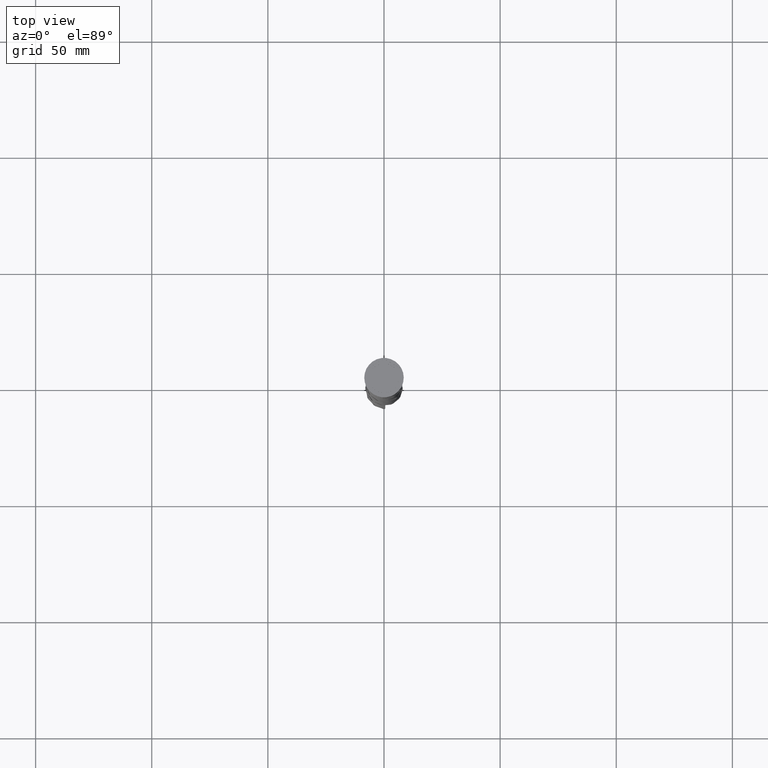
[diagram: clean part render]
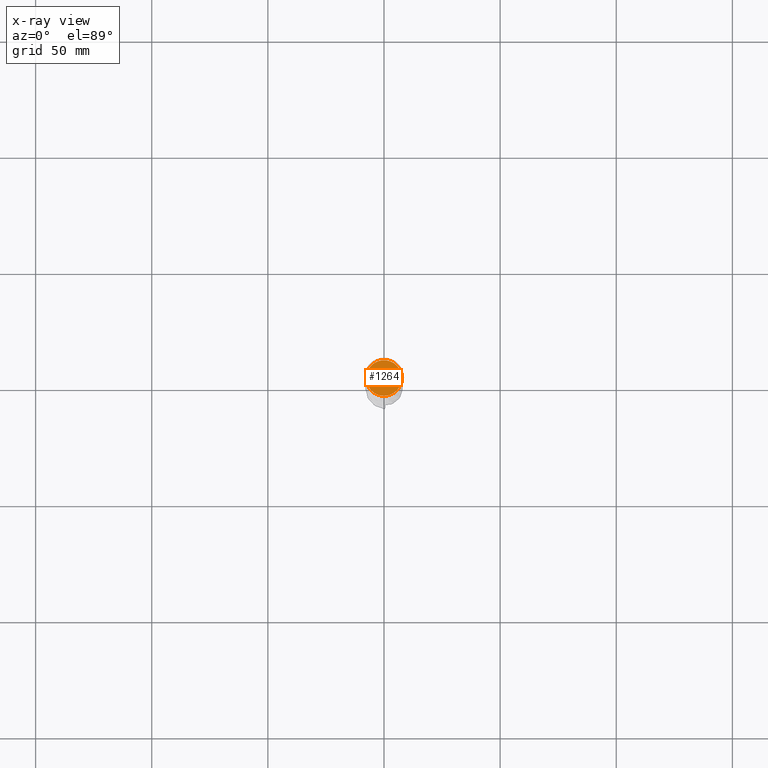
[diagram: x-ray — body ghosted, one internal face saturated and labeled with its STEP entity id]
A machine part, top view, then the same camera in x-ray: the body is ghosted and one INTERNAL B-rep face — a face not visible from any outside direction — is saturated and labeled: STEP entity #1264.
In plain terms, the highlighted planar face has unit normal (0, 0, -1).
Its self-contained STEP definition (entity closure, byte-faithful):
#226 = AXIS2_PLACEMENT_3D ( 'NONE', #3505, #1921, #1621 ) ;
#579 = DIRECTION ( 'NONE',  ( 0.000000000000000000, 0.000000000000000000, -1.000000000000000000 ) ) ;
#645 = ORIENTED_EDGE ( 'NONE', *, *, #3717, .T. ) ;
#675 = EDGE_CURVE ( 'NONE', #2085, #1122, #3945, .T. ) ;
#844 = CIRCLE ( 'NONE', #3104, 7.700000000000001954 ) ;
#1122 = VERTEX_POINT ( 'NONE', #1460 ) ;
#1199 = CARTESIAN_POINT ( 'NONE',  ( 0.000000000000000000, 0.000000000000000000, -12.00000000000000000 ) ) ;
#1264 = ADVANCED_FACE ( 'NONE', ( #1503 ), #4052, .F. ) ;
#1460 = CARTESIAN_POINT ( 'NONE',  ( -7.700000000000001954, 0.000000000000000000, -12.00000000000000000 ) ) ;
#1503 = FACE_OUTER_BOUND ( 'NONE', #1747, .T. ) ;
#1621 = DIRECTION ( 'NONE',  ( -1.000000000000000000, 0.000000000000000000, 0.000000000000000000 ) ) ;
#1747 = EDGE_LOOP ( 'NONE', ( #645, #2880 ) ) ;
#1892 = AXIS2_PLACEMENT_3D ( 'NONE', #1199, #579, #3513 ) ;
#1921 = DIRECTION ( 'NONE',  ( -0.000000000000000000, -0.000000000000000000, 1.000000000000000000 ) ) ;
#1960 = DIRECTION ( 'NONE',  ( -1.000000000000000000, 0.000000000000000000, 0.000000000000000000 ) ) ;
#2085 = VERTEX_POINT ( 'NONE', #2127 ) ;
#2127 = CARTESIAN_POINT ( 'NONE',  ( 7.700000000000001954, 9.613477373306725302E-16, -12.00000000000000000 ) ) ;
#2590 = DIRECTION ( 'NONE',  ( -0.000000000000000000, -0.000000000000000000, 1.000000000000000000 ) ) ;
#2880 = ORIENTED_EDGE ( 'NONE', *, *, #675, .T. ) ;
#2957 = CARTESIAN_POINT ( 'NONE',  ( 0.000000000000000000, 0.000000000000000000, -12.00000000000000000 ) ) ;
#3104 = AXIS2_PLACEMENT_3D ( 'NONE', #2957, #2590, #1960 ) ;
#3505 = CARTESIAN_POINT ( 'NONE',  ( 0.000000000000000000, 0.000000000000000000, -12.00000000000000000 ) ) ;
#3513 = DIRECTION ( 'NONE',  ( -1.000000000000000000, 0.000000000000000000, -0.000000000000000000 ) ) ;
#3717 = EDGE_CURVE ( 'NONE', #1122, #2085, #844, .T. ) ;
#3945 = CIRCLE ( 'NONE', #226, 7.700000000000001954 ) ;
#4052 = PLANE ( 'NONE',  #1892 ) ;